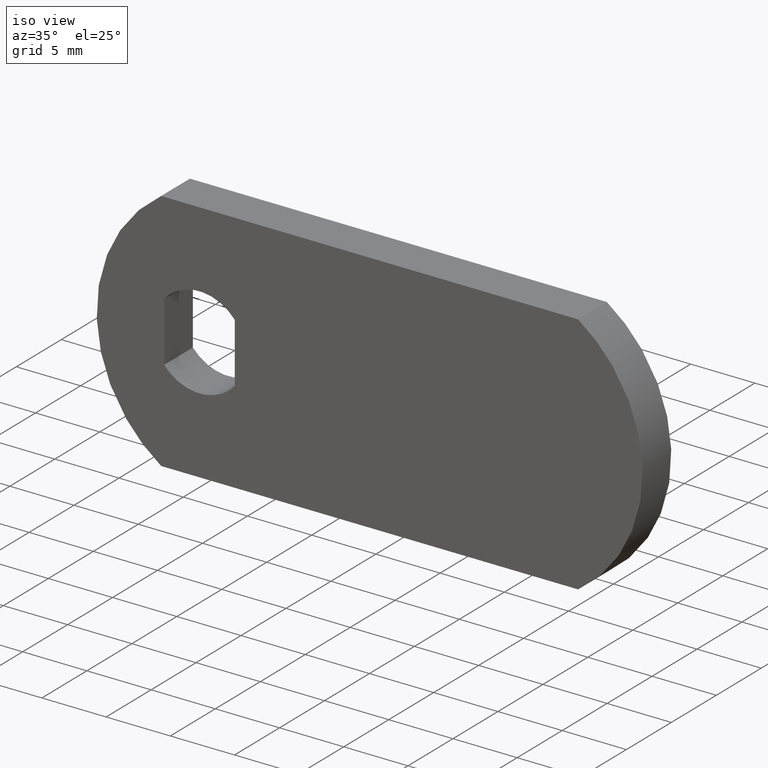
[diagram: clean part render]
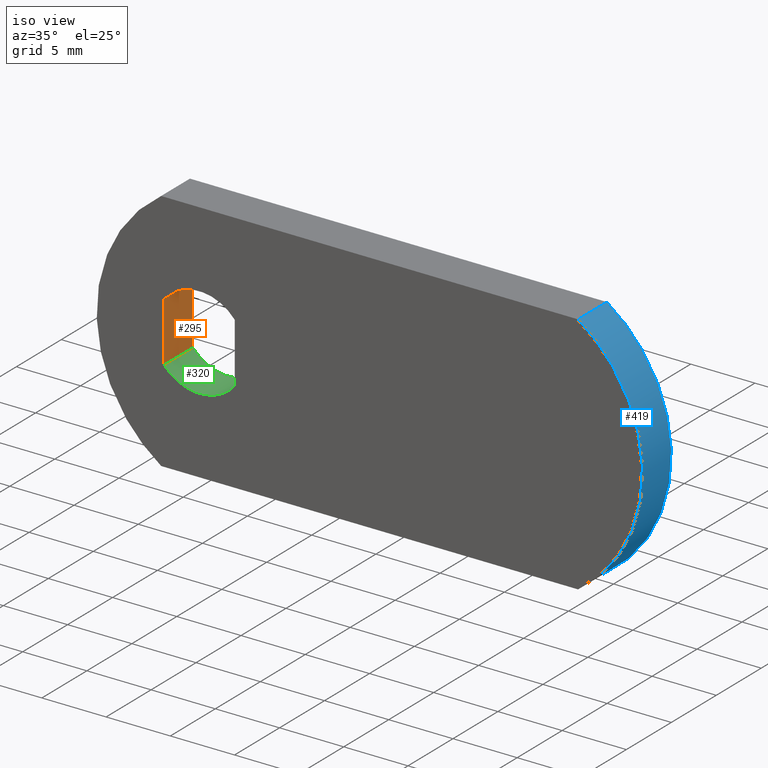
[diagram: same view with three faces highlighted in distinct colors, each labeled with its STEP entity id]
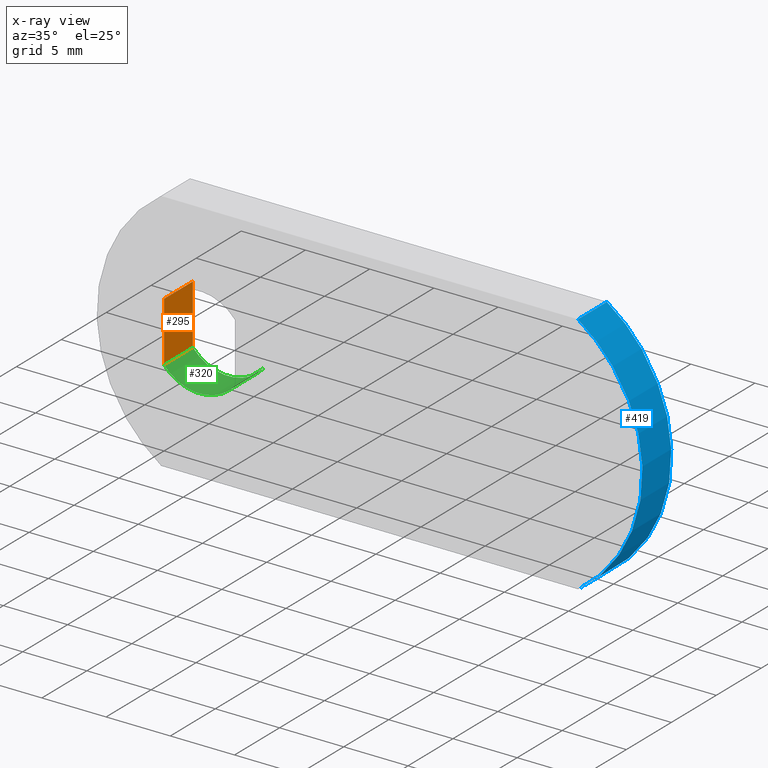
[diagram: x-ray of the same camera — body ghosted, the three highlighted faces saturated]
A machine part, iso view with three faces highlighted in distinct colors.
The next image is the same camera in x-ray (body ghosted, the three faces saturated) — at least one of them is partly hidden behind the body in this view.
Their STEP definitions:

[orange] entity #295 — the highlighted face is a freeform B-spline surface patch.
#101=CARTESIAN_POINT('',(-2.750000000000000,0.0,2.323252031097780));
#102=VERTEX_POINT('',#101);
#118=CARTESIAN_POINT('',(-2.750000000000000,0.0,-2.323252031097780));
#119=VERTEX_POINT('',#118);
#120=CARTESIAN_POINT('',(-2.750000000000000,0.0,2.323252031097780));
#121=CARTESIAN_POINT('',(-2.750000000000000,0.0,-2.323252031097780));
#122=QUASI_UNIFORM_CURVE('',1,(#120,#121),.UNSPECIFIED.,.F.,.U.);
#123=EDGE_CURVE('',#102,#119,#122,.T.);
#207=CARTESIAN_POINT('',(-2.750000000000000,-3.200000000000000,2.323252031097780));
#208=VERTEX_POINT('',#207);
#231=CARTESIAN_POINT('',(-2.750000000000000,-3.200000000000000,-2.323252031097780));
#232=VERTEX_POINT('',#231);
#248=CARTESIAN_POINT('',(-2.750000000000000,-3.200000000000000,2.323252031097780));
#249=CARTESIAN_POINT('',(-2.750000000000000,-3.200000000000000,-2.323252031097780));
#250=QUASI_UNIFORM_CURVE('',1,(#248,#249),.UNSPECIFIED.,.F.,.U.);
#251=EDGE_CURVE('',#208,#232,#250,.T.);
#276=CARTESIAN_POINT('',(-2.750000000000000,-3.359840053876400,2.555344839779990));
#277=CARTESIAN_POINT('',(-2.750000000000000,-3.359840053876400,-2.555344673608055));
#278=CARTESIAN_POINT('',(-2.750000000000000,0.159840082486629,2.555344839779990));
#279=CARTESIAN_POINT('',(-2.750000000000000,0.159840082486629,-2.555344673608055));
#280=B_SPLINE_SURFACE_WITH_KNOTS('',1,1,((#276,#278),(#277,#279)),.UNSPECIFIED.,.F.,.F.,.U.,(2,2),(2,2),(0.0,5.110689513388045),(0.0,3.519680136363029),.UNSPECIFIED.);
#281=ORIENTED_EDGE('',*,*,#123,.F.);
#282=CARTESIAN_POINT('',(-2.750000000000000,-3.200000000000000,2.323252031097780));
#283=CARTESIAN_POINT('',(-2.750000000000000,0.0,2.323252031097780));
#284=QUASI_UNIFORM_CURVE('',1,(#282,#283),.UNSPECIFIED.,.F.,.U.);
#285=EDGE_CURVE('',#208,#102,#284,.T.);
#286=ORIENTED_EDGE('',*,*,#285,.F.);
#287=ORIENTED_EDGE('',*,*,#251,.T.);
#288=CARTESIAN_POINT('',(-2.750000000000000,-3.200000000000000,-2.323252031097780));
#289=CARTESIAN_POINT('',(-2.750000000000000,0.0,-2.323252031097780));
#290=QUASI_UNIFORM_CURVE('',1,(#288,#289),.UNSPECIFIED.,.F.,.U.);
#291=EDGE_CURVE('',#232,#119,#290,.T.);
#292=ORIENTED_EDGE('',*,*,#291,.T.);
#293=EDGE_LOOP('',(#281,#286,#287,#292));
#294=FACE_OUTER_BOUND('',#293,.T.);
#295=ADVANCED_FACE('',(#294),#280,.T.);

[blue] entity #419 — the highlighted face is a freeform B-spline surface patch.
#49=CARTESIAN_POINT('',(29.480740698407850,0.0,-9.500000000000000));
#50=VERTEX_POINT('',#49);
#51=CARTESIAN_POINT('',(29.480740698407850,0.0,9.500000000000000));
#52=VERTEX_POINT('',#51);
#53=CARTESIAN_POINT('',(29.480740698407850,0.0,-9.500000000000007));
#54=CARTESIAN_POINT('',(34.500000000000000,0.0,-6.075945470348388));
#55=CARTESIAN_POINT('',(34.500000000000000,0.0,0.0));
#56=CARTESIAN_POINT('',(34.500000000000000,0.0,6.075945470348382));
#57=CARTESIAN_POINT('',(29.480740698407860,0.0,9.500000000000002));
#65=(BOUNDED_CURVE()B_SPLINE_CURVE(2,(#53,#54,#55,#56,#57),.UNSPECIFIED.,.F.,.U.)B_SPLINE_CURVE_WITH_KNOTS((3,2,3),(0.0,0.500000000000000,1.0),.UNSPECIFIED.)CURVE()GEOMETRIC_REPRESENTATION_ITEM()RATIONAL_B_SPLINE_CURVE((1.0,0.884178338749251,1.0,0.884178338749251,1.0))REPRESENTATION_ITEM(''));
#66=EDGE_CURVE('',#50,#52,#65,.T.);
#155=CARTESIAN_POINT('',(29.480740698407850,-3.200000000000000,-9.500000000000000));
#156=VERTEX_POINT('',#155);
#157=CARTESIAN_POINT('',(29.480740698407850,-3.200000000000000,9.500000000000000));
#158=VERTEX_POINT('',#157);
#159=CARTESIAN_POINT('',(29.480740698407850,-3.200000000000000,-9.500000000000007));
#160=CARTESIAN_POINT('',(34.500000000000000,-3.200000000000001,-6.075945470348388));
#161=CARTESIAN_POINT('',(34.500000000000000,-3.200000000000000,0.0));
#162=CARTESIAN_POINT('',(34.500000000000000,-3.200000000000001,6.075945470348382));
#163=CARTESIAN_POINT('',(29.480740698407860,-3.200000000000000,9.500000000000002));
#171=(BOUNDED_CURVE()B_SPLINE_CURVE(2,(#159,#160,#161,#162,#163),.UNSPECIFIED.,.F.,.U.)B_SPLINE_CURVE_WITH_KNOTS((3,2,3),(0.0,0.500000000000000,1.0),.UNSPECIFIED.)CURVE()GEOMETRIC_REPRESENTATION_ITEM()RATIONAL_B_SPLINE_CURVE((1.0,0.884178338749251,1.0,0.884178338749251,1.0))REPRESENTATION_ITEM(''));
#172=EDGE_CURVE('',#156,#158,#171,.T.);
#262=CARTESIAN_POINT('',(29.480740698407850,-3.200000000000000,-9.500000000000000));
#263=CARTESIAN_POINT('',(29.480740698407850,0.0,-9.500000000000000));
#264=QUASI_UNIFORM_CURVE('',1,(#262,#263),.UNSPECIFIED.,.F.,.U.);
#265=EDGE_CURVE('',#156,#50,#264,.T.);
#391=CARTESIAN_POINT('',(29.480740698407850,-3.200000000000000,9.500000000000000));
#392=CARTESIAN_POINT('',(29.480740698407850,0.0,9.500000000000000));
#393=QUASI_UNIFORM_CURVE('',1,(#391,#392),.UNSPECIFIED.,.F.,.U.);
#394=EDGE_CURVE('',#158,#52,#393,.T.);
#399=CARTESIAN_POINT('',(29.397591844425609,-3.280000000000001,-9.556192682870035));
#400=CARTESIAN_POINT('',(29.397591844425609,0.082000000000000,-9.556192682870035));
#401=CARTESIAN_POINT('',(44.397809670882395,-3.280000000000002,0.486014963609317));
#402=CARTESIAN_POINT('',(44.397809670882395,0.082000000000000,0.486014963609317));
#403=CARTESIAN_POINT('',(28.957112698290150,-3.280000000000001,9.836808847378812));
#404=CARTESIAN_POINT('',(28.957112698290150,0.082000000000000,9.836808847378812));
#412=(BOUNDED_SURFACE()B_SPLINE_SURFACE(1,2,((#399,#401,#403),(#400,#402,#404)),.UNSPECIFIED.,.F.,.F.,.U.)B_SPLINE_SURFACE_WITH_KNOTS((2,2),(3,3),(0.0,3.362000000000001),(0.0,25.236464184826680),.UNSPECIFIED.)GEOMETRIC_REPRESENTATION_ITEM()RATIONAL_B_SPLINE_SURFACE(((1.0,0.537299608346824,1.0),(1.0,0.537299608346824,1.0)))REPRESENTATION_ITEM('')SURFACE());
#413=ORIENTED_EDGE('',*,*,#66,.T.);
#414=ORIENTED_EDGE('',*,*,#394,.F.);
#415=ORIENTED_EDGE('',*,*,#172,.F.);
#416=ORIENTED_EDGE('',*,*,#265,.T.);
#417=EDGE_LOOP('',(#413,#414,#415,#416));
#418=FACE_OUTER_BOUND('',#417,.T.);
#419=ADVANCED_FACE('',(#418),#412,.T.);

[green] entity #320 — the highlighted face is a freeform B-spline surface patch.
#118=CARTESIAN_POINT('',(-2.750000000000000,0.0,-2.323252031097780));
#119=VERTEX_POINT('',#118);
#125=CARTESIAN_POINT('',(2.750000000000000,0.0,-2.323252031097775));
#126=VERTEX_POINT('',#125);
#127=CARTESIAN_POINT('',(-2.750000000000003,0.0,-2.323252031097785));
#128=CARTESIAN_POINT('',(-1.671379159290170,0.0,-3.600000000000001));
#129=CARTESIAN_POINT('',(0.0,0.0,-3.600000000000000));
#130=CARTESIAN_POINT('',(1.671379159290173,0.0,-3.600000000000001));
#131=CARTESIAN_POINT('',(2.750000000000006,0.0,-2.323252031097781));
#139=(BOUNDED_CURVE()B_SPLINE_CURVE(2,(#127,#128,#129,#130,#131),.UNSPECIFIED.,.F.,.U.)B_SPLINE_CURVE_WITH_KNOTS((3,2,3),(0.0,0.500000000000000,1.0),.UNSPECIFIED.)CURVE()GEOMETRIC_REPRESENTATION_ITEM()RATIONAL_B_SPLINE_CURVE((1.0,0.907013722723105,1.0,0.907013722723105,1.0))REPRESENTATION_ITEM(''));
#140=EDGE_CURVE('',#119,#126,#139,.T.);
#224=CARTESIAN_POINT('',(2.750000000000000,-3.200000000000000,-2.323252031097775));
#225=VERTEX_POINT('',#224);
#231=CARTESIAN_POINT('',(-2.750000000000000,-3.200000000000000,-2.323252031097780));
#232=VERTEX_POINT('',#231);
#233=CARTESIAN_POINT('',(-2.750000000000003,-3.200000000000000,-2.323252031097785));
#234=CARTESIAN_POINT('',(-1.671379159290170,-3.199999999999999,-3.600000000000001));
#235=CARTESIAN_POINT('',(0.0,-3.200000000000000,-3.600000000000000));
#236=CARTESIAN_POINT('',(1.671379159290173,-3.199999999999999,-3.600000000000001));
#237=CARTESIAN_POINT('',(2.750000000000006,-3.200000000000000,-2.323252031097781));
#245=(BOUNDED_CURVE()B_SPLINE_CURVE(2,(#233,#234,#235,#236,#237),.UNSPECIFIED.,.F.,.U.)B_SPLINE_CURVE_WITH_KNOTS((3,2,3),(0.0,0.500000000000000,1.0),.UNSPECIFIED.)CURVE()GEOMETRIC_REPRESENTATION_ITEM()RATIONAL_B_SPLINE_CURVE((1.0,0.907013722723105,1.0,0.907013722723105,1.0))REPRESENTATION_ITEM(''));
#246=EDGE_CURVE('',#232,#225,#245,.T.);
#288=CARTESIAN_POINT('',(-2.750000000000000,-3.200000000000000,-2.323252031097780));
#289=CARTESIAN_POINT('',(-2.750000000000000,0.0,-2.323252031097780));
#290=QUASI_UNIFORM_CURVE('',1,(#288,#289),.UNSPECIFIED.,.F.,.U.);
#291=EDGE_CURVE('',#232,#119,#290,.T.);
#296=CARTESIAN_POINT('',(-2.824873879980530,-3.280000000000001,-2.231610979136762));
#297=CARTESIAN_POINT('',(-2.824873879980530,0.082000000000000,-2.231610979136762));
#298=CARTESIAN_POINT('',(0.128064459999365,-3.280000000000000,-5.969573582739396));
#299=CARTESIAN_POINT('',(0.128064459999365,0.082000000000000,-5.969573582739396));
#300=CARTESIAN_POINT('',(2.917979773599898,-3.280000000000000,-2.108410311315585));
#301=CARTESIAN_POINT('',(2.917979773599898,0.082000000000000,-2.108410311315585));
#309=(BOUNDED_SURFACE()B_SPLINE_SURFACE(1,2,((#296,#298,#300),(#297,#299,#301)),.UNSPECIFIED.,.F.,.F.,.U.)B_SPLINE_SURFACE_WITH_KNOTS((2,2),(3,3),(0.0,3.362000000000001),(0.0,7.167140233186154),.UNSPECIFIED.)GEOMETRIC_REPRESENTATION_ITEM()RATIONAL_B_SPLINE_SURFACE(((1.0,0.602504377753214,0.998623677677103),(1.0,0.602504377753214,0.998623677677103)))REPRESENTATION_ITEM('')SURFACE());
#310=ORIENTED_EDGE('',*,*,#140,.F.);
#311=ORIENTED_EDGE('',*,*,#291,.F.);
#312=ORIENTED_EDGE('',*,*,#246,.T.);
#313=CARTESIAN_POINT('',(2.750000000000000,-3.200000000000000,-2.323252031097775));
#314=CARTESIAN_POINT('',(2.750000000000000,0.0,-2.323252031097775));
#315=QUASI_UNIFORM_CURVE('',1,(#313,#314),.UNSPECIFIED.,.F.,.U.);
#316=EDGE_CURVE('',#225,#126,#315,.T.);
#317=ORIENTED_EDGE('',*,*,#316,.T.);
#318=EDGE_LOOP('',(#310,#311,#312,#317));
#319=FACE_OUTER_BOUND('',#318,.T.);
#320=ADVANCED_FACE('',(#319),#309,.F.);